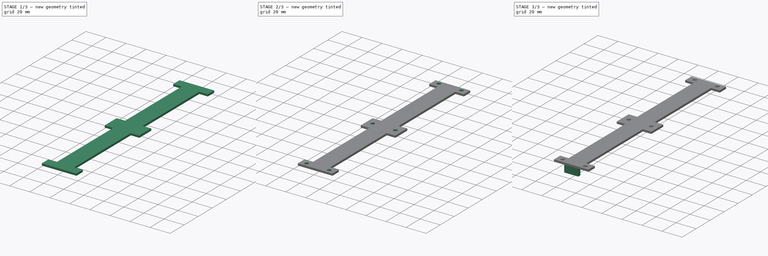
[diagram: build sequence overview — one tinted view per stage of 3, left to right]
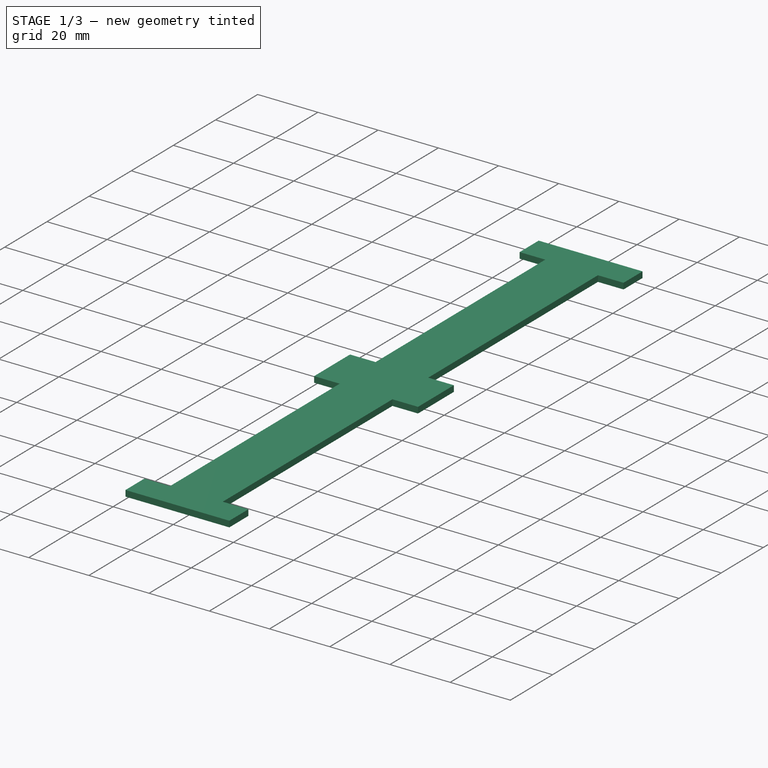
[diagram: stage 1 of 3 — iso view after this stage's code; geometry added in this stage tinted green]
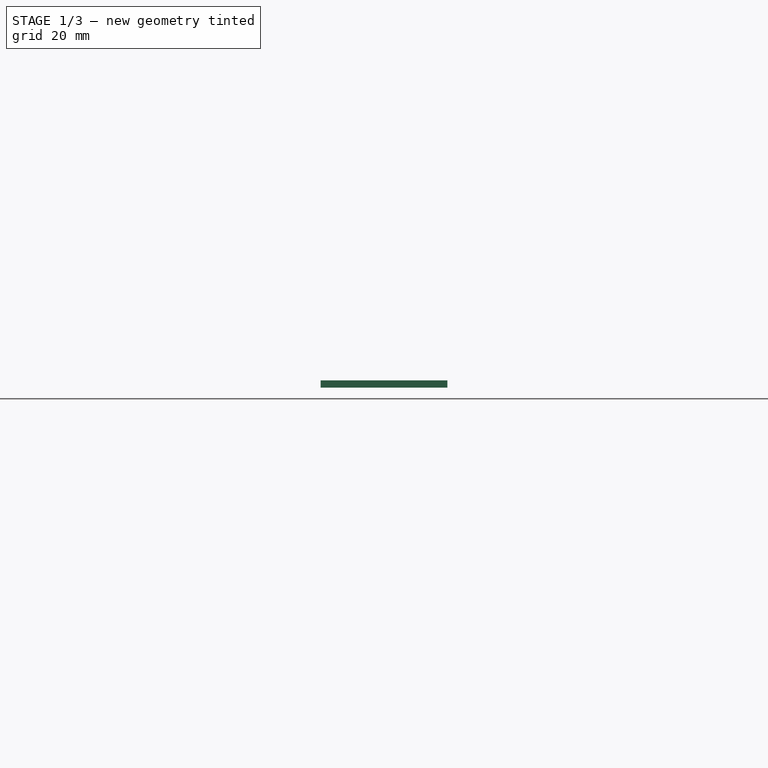
[diagram: stage 1 of 3 — front view after this stage's code; geometry added in this stage tinted green]
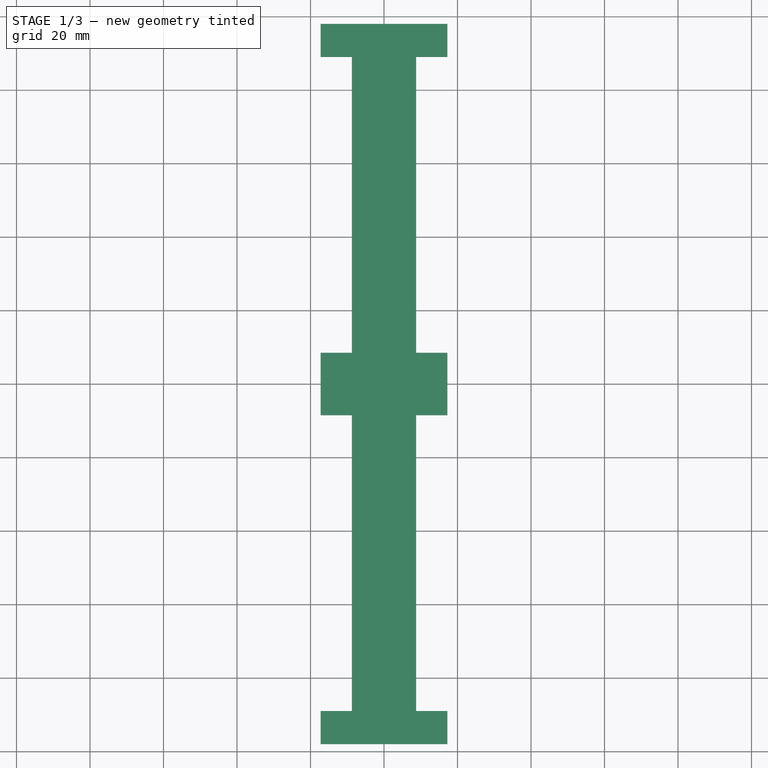
[diagram: stage 1 of 3 — top view after this stage's code; geometry added in this stage tinted green]
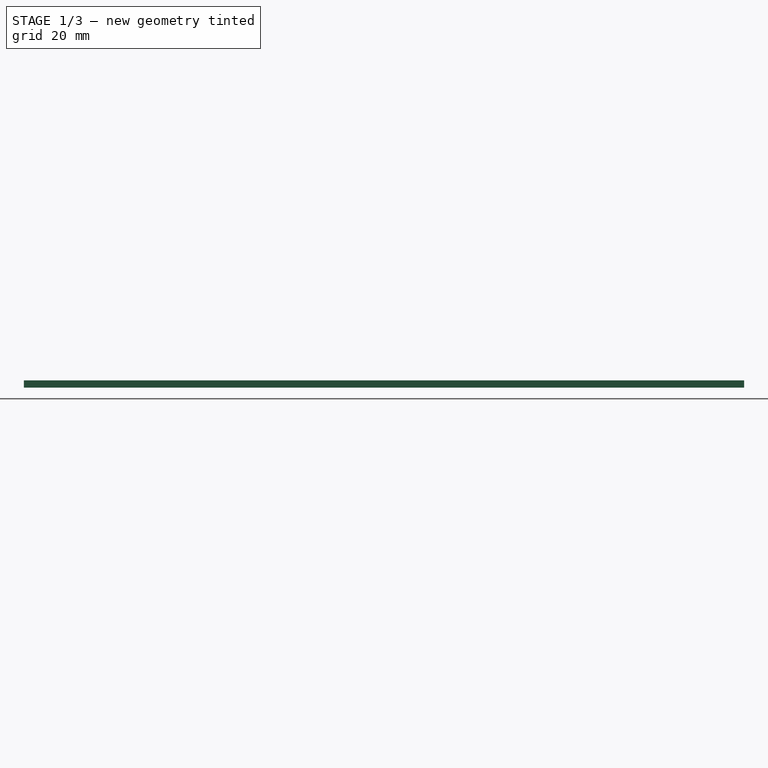
[diagram: stage 1 of 3 — right view after this stage's code; geometry added in this stage tinted green]
FCSTD DOCUMENT  (FreeCAD 0.19R19180 (Git))
Label: fan_holder_wire_cover
License: All rights reserved
LicenseURL: http://en.wikipedia.org/wiki/All_rights_reserved
objects: Sketcher::SketchObject×4, PartDesign::Pad×2, PartDesign::Pocket×2, PartDesign::Fillet×1, PartDesign::Body×1
note: 14 computed .brp shape members not serialized (recipe doc carries the construction recipe); baked Part::Feature solids carry a one-line shape summary decoded from their .brp

FEATURE [Sketcher::SketchObject] Sketch
  MapMode = 5
  Support = -> [XY_Plane]
  sketch-geometry (4):
    g0: LineSegment StartX=-17.25 StartY=98 StartZ=0 EndX=17.25 EndY=98 EndZ=0
    g1: LineSegment StartX=17.25 StartY=98 StartZ=0 EndX=17.25 EndY=-98 EndZ=0
    g2: LineSegment StartX=17.25 StartY=-98 StartZ=0 EndX=-17.25 EndY=-98 EndZ=0
    g3: LineSegment StartX=-17.25 StartY=-98 StartZ=0 EndX=-17.25 EndY=98 EndZ=0
  constraints (12):
    c: Coincident(g0,g1)
    c: Coincident(g1,g2)
    c: Coincident(g2,g3)
    c: Coincident(g3,g0)
    c: Horizontal(g0)
    c: Horizontal(g2)
    c: Vertical(g1)
    c: Vertical(g3)
    c: DistanceX(g2,g2) = 34.5
    c: DistanceY(g3,g3) = 196
    c: DistanceY(g-1,g0) = 98
    c: DistanceX(g2,g-1) = 17.25
FEATURE [PartDesign::Pad] Pad
  Length = 2
  Length2 = 100
  Profile = -> Sketch
  Type = 0
FEATURE [Sketcher::SketchObject] Sketch001
  ExternalGeometry = -> [Pad]
  MapMode = 5
  Placement = pos=(0,0,2) rot=(0,0,1;0rad)
  Support = -> [Pad]
  sketch-geometry (16):
    g0: LineSegment StartX=-17.25 StartY=89 StartZ=0 EndX=-8.75 EndY=89 EndZ=0
    g1: LineSegment StartX=-8.75 StartY=89 StartZ=0 EndX=-8.75 EndY=8.5 EndZ=0
    g2: LineSegment StartX=-8.75 StartY=8.5 StartZ=0 EndX=-17.25 EndY=8.5 EndZ=0
    g3: LineSegment StartX=-17.25 StartY=8.5 StartZ=0 EndX=-17.25 EndY=89 EndZ=0
    g4: LineSegment StartX=8.75 StartY=89 StartZ=0 EndX=17.25 EndY=89 EndZ=0
    g5: LineSegment StartX=17.25 StartY=89 StartZ=0 EndX=17.25 EndY=8.5 EndZ=0
    g6: LineSegment StartX=17.25 StartY=8.5 StartZ=0 EndX=8.75 EndY=8.5 EndZ=0
    g7: LineSegment StartX=8.75 StartY=8.5 StartZ=0 EndX=8.75 EndY=89 EndZ=0
    g8: LineSegment StartX=-17.25 StartY=-8.5 StartZ=0 EndX=-8.75 EndY=-8.5 EndZ=0
    g9: LineSegment StartX=-8.75 StartY=-8.5 StartZ=0 EndX=-8.75 EndY=-89 EndZ=0
    g10: LineSegment StartX=-8.75 StartY=-89 StartZ=0 EndX=-17.25 EndY=-89 EndZ=0
    g11: LineSegment StartX=-17.25 StartY=-89 StartZ=0 EndX=-17.25 EndY=-8.5 EndZ=0
    g12: LineSegment StartX=8.75 StartY=-8.5 StartZ=0 EndX=17.25 EndY=-8.5 EndZ=0
    g13: LineSegment StartX=17.25 StartY=-8.5 StartZ=0 EndX=17.25 EndY=-89 EndZ=0
    g14: LineSegment StartX=17.25 StartY=-89 StartZ=0 EndX=8.75 EndY=-89 EndZ=0
    g15: LineSegment StartX=8.75 StartY=-89 StartZ=0 EndX=8.75 EndY=-8.5 EndZ=0
  constraints (48):
    c: Coincident(g0,g1)
    c: Coincident(g1,g2)
    c: Coincident(g2,g3)
    c: Coincident(g3,g0)
    c: Horizontal(g0)
    c: Horizontal(g2)
    c: Vertical(g1)
    c: Vertical(g3)
    c: Coincident(g4,g5)
    c: Coincident(g5,g6)
    c: Coincident(g6,g7)
    c: Coincident(g7,g4)
    c: Horizontal(g4)
    c: Horizontal(g6)
    c: Vertical(g5)
    c: Vertical(g7)
    c: Coincident(g8,g9)
    c: Coincident(g9,g10)
    c: Coincident(g10,g11)
    c: Coincident(g11,g8)
    c: Horizontal(g8)
    c: Horizontal(g10)
    c: Vertical(g9)
    c: Vertical(g11)
    c: Coincident(g12,g13)
    c: Coincident(g13,g14)
    c: Coincident(g14,g15)
    c: Coincident(g15,g12)
    c: Horizontal(g12)
    c: Horizontal(g14)
    c: Vertical(g13)
    c: Vertical(g15)
    c: Vertical(g-4,g0)
    c: Vertical(g0,g8)
    c: Vertical(g4,g-3)
    c: Vertical(g-3,g12)
    c: Equal(g0,g4)
    c: Equal(g4,g8)
    c: Equal(g8,g12)
    c: DistanceX(g0,g0) = 8.5
    c: DistanceY(g0,g-4) = 9
    c: Horizontal(g0,g4)
    c: Horizontal(g8,g12)
    c: Horizontal(g1,g6)
    c: DistanceY(g8,g2) = 17
    c: DistanceY(g-1,g2) = 8.5
    c: DistanceY(g-5,g10) = 9
    c: Horizontal(g14,g9)
FEATURE [PartDesign::Pocket] Pocket
  BaseFeature = -> Pad
  Length = 5
  Length2 = 100
  Profile = -> Sketch001
  Type = 0
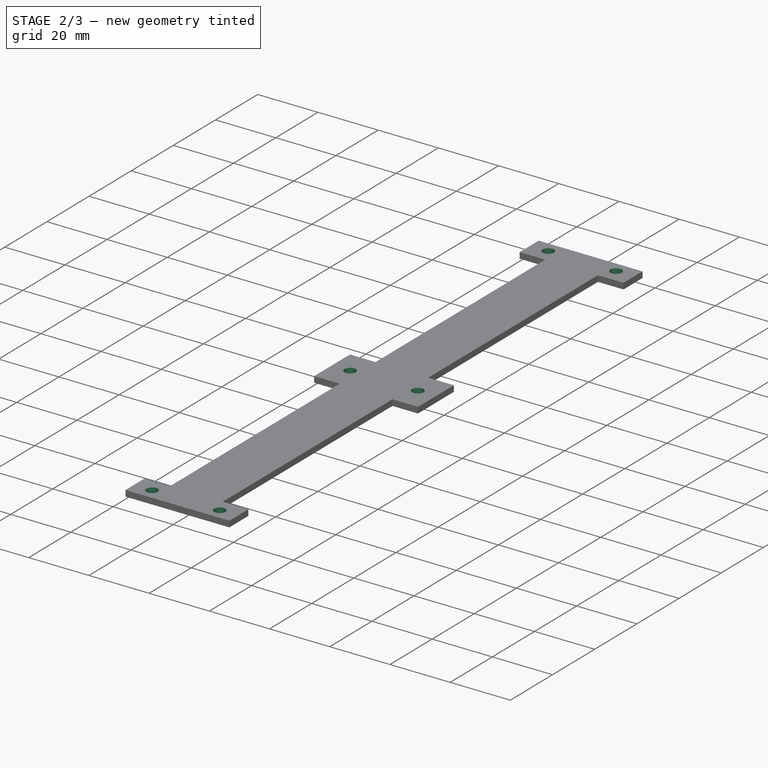
[diagram: stage 2 of 3 — iso view after this stage's code; geometry added in this stage tinted green]
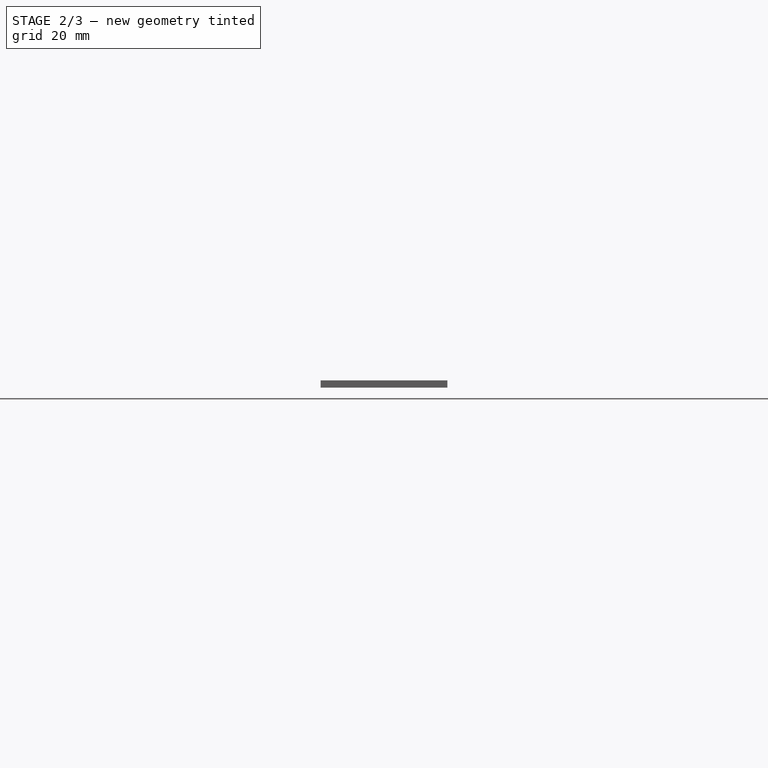
[diagram: stage 2 of 3 — front view after this stage's code; geometry added in this stage tinted green]
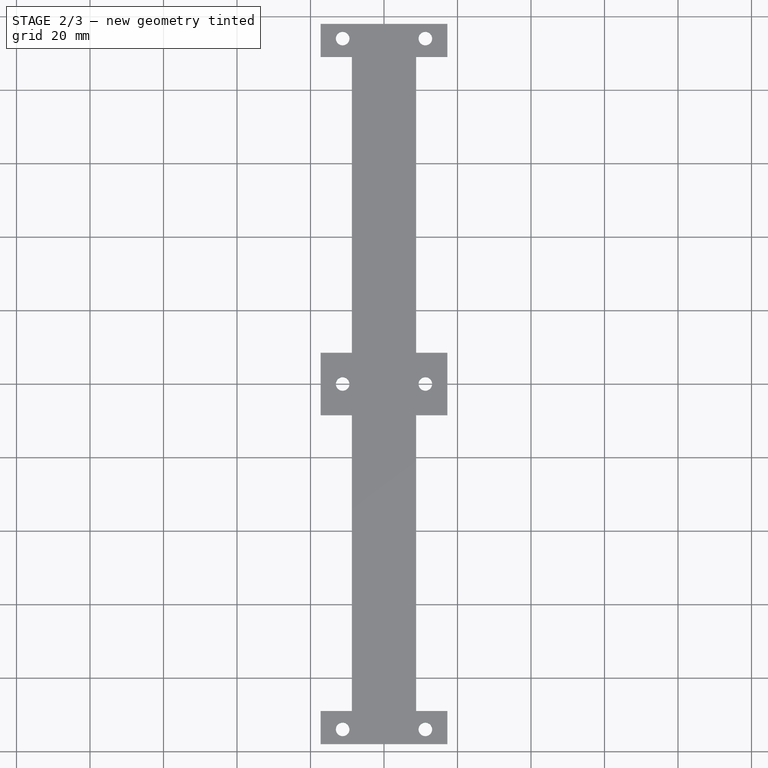
[diagram: stage 2 of 3 — top view after this stage's code; geometry added in this stage tinted green]
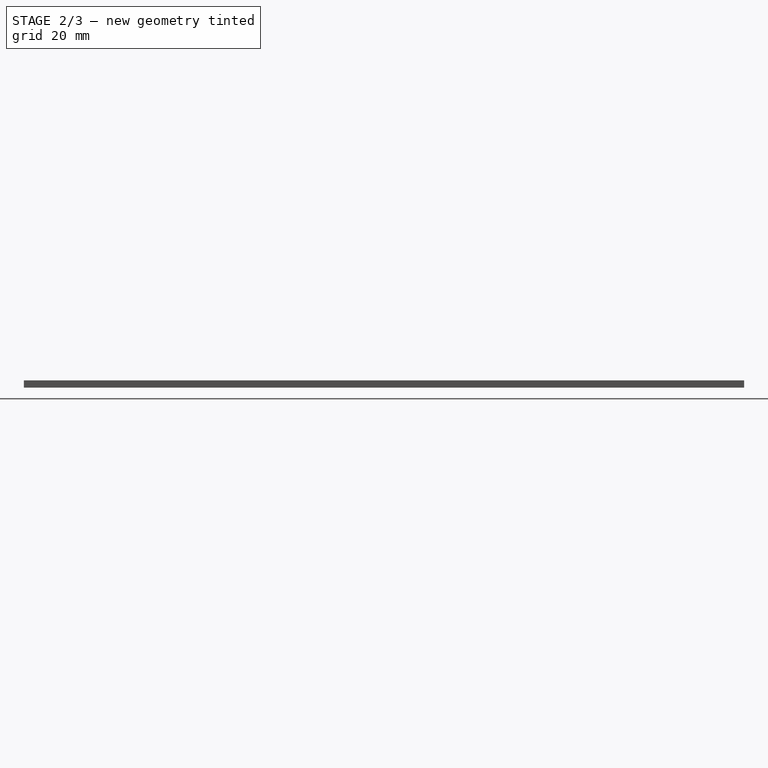
[diagram: stage 2 of 3 — right view after this stage's code; geometry added in this stage tinted green]
FEATURE [Sketcher::SketchObject] Sketch002
  ExternalGeometry = -> [Pocket]
  MapMode = 5
  Placement = pos=(0,0,2) rot=(0,0,1;0rad)
  Support = -> [Pocket]
  sketch-geometry (6):
    g0: Circle CenterX=-11.25 CenterY=94 CenterZ=0 NormalX=0 NormalY=0 NormalZ=1 AngleXU=0 Radius=1.85
    g1: Circle CenterX=11.25 CenterY=94 CenterZ=0 NormalX=0 NormalY=0 NormalZ=1 AngleXU=0 Radius=1.85
    g2: Circle CenterX=-11.25 CenterY=0 CenterZ=0 NormalX=0 NormalY=0 NormalZ=1 AngleXU=0 Radius=1.85
    g3: Circle CenterX=11.25 CenterY=0 CenterZ=0 NormalX=0 NormalY=0 NormalZ=1 AngleXU=0 Radius=1.85
    g4: Circle CenterX=-11.25 CenterY=-94 CenterZ=0 NormalX=0 NormalY=0 NormalZ=1 AngleXU=0 Radius=1.85
    g5: Circle CenterX=11.25 CenterY=-94 CenterZ=0 NormalX=0 NormalY=0 NormalZ=1 AngleXU=0 Radius=1.85
  constraints (19):
    c: PointOnObject(g2,g-1)
    c: PointOnObject(g3,g-1)
    c: Diameter(g5) = 3.7
    c: Equal(g5,g4)
    c: Equal(g5,g2)
    c: Equal(g5,g3)
    c: Equal(g5,g1)
    c: Equal(g5,g0)
    c: Vertical(g3,g1)
    c: Vertical(g1,g5)
    c: Vertical(g4,g0)
    c: Vertical(g0,g2)
    c: Horizontal(g5,g4)
    c: DistanceY(g-3,g5) = 4
    c: DistanceX(g4,g5) = 22.5
    c: DistanceX(g-1,g5) = 11.25
    c: DistanceY(g-5) = 98
    c: DistanceY(g1,g-4) = 4
    c: Horizontal(g0,g1)
FEATURE [PartDesign::Pocket] Pocket001
  BaseFeature = -> Pocket
  Length = 5
  Length2 = 100
  Profile = -> Sketch002
  Type = 0
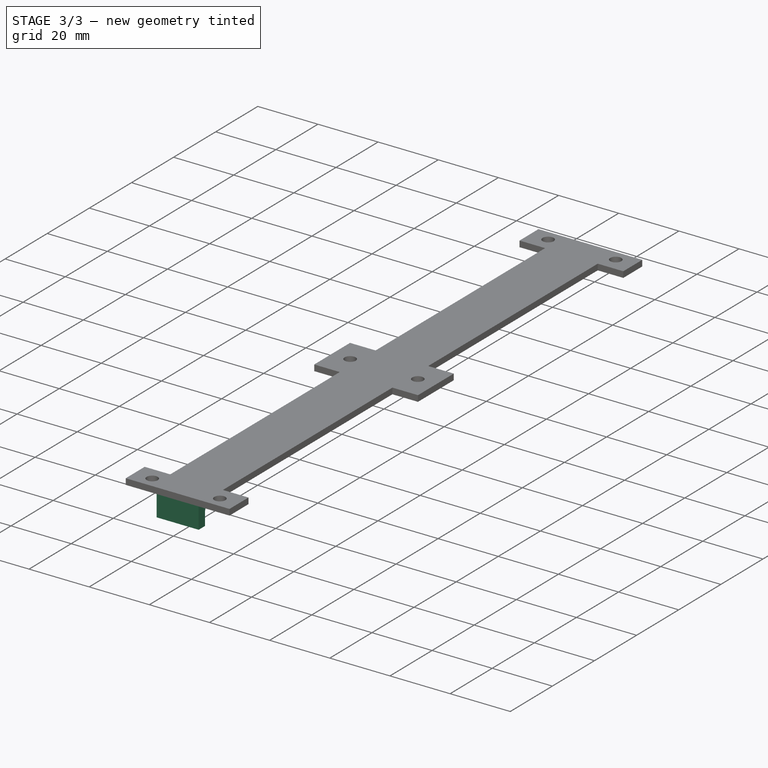
[diagram: stage 3 of 3 — iso view after this stage's code; geometry added in this stage tinted green]
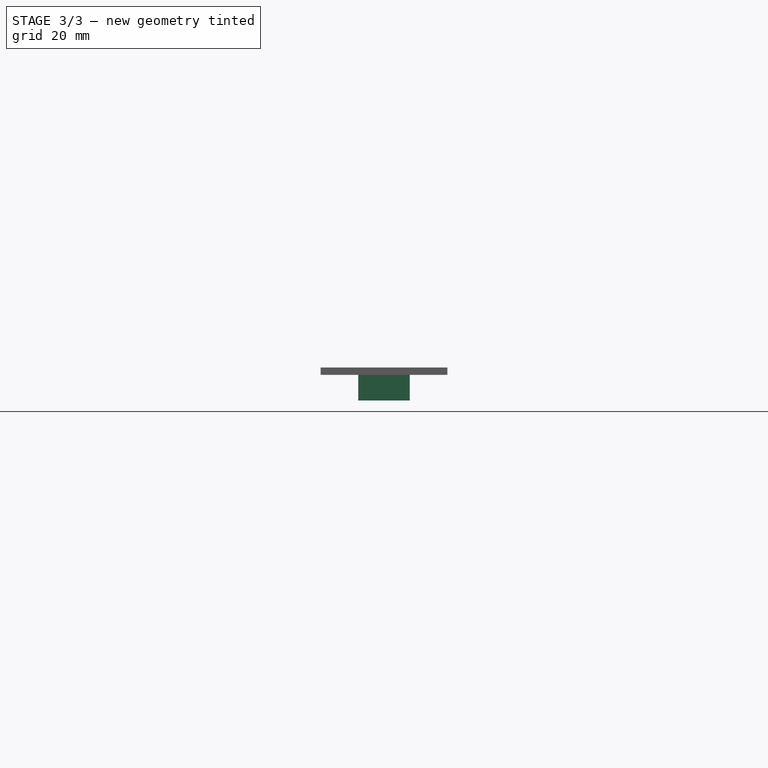
[diagram: stage 3 of 3 — front view after this stage's code; geometry added in this stage tinted green]
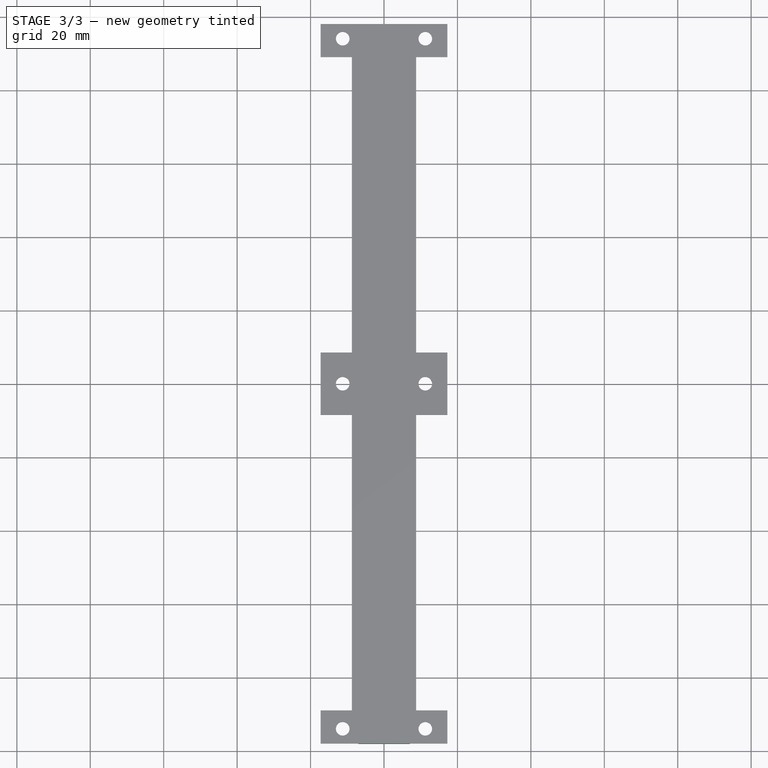
[diagram: stage 3 of 3 — top view after this stage's code; geometry added in this stage tinted green]
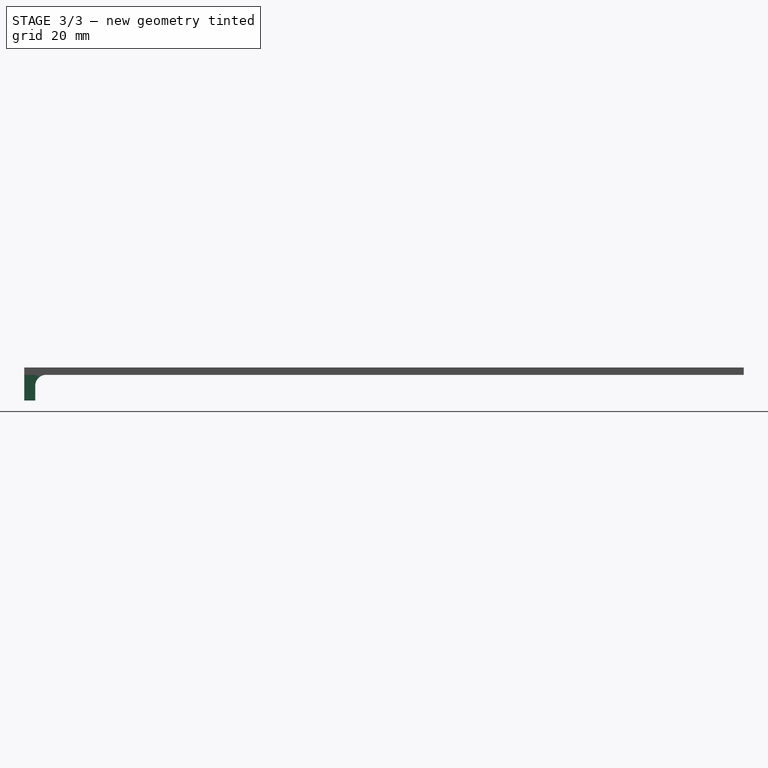
[diagram: stage 3 of 3 — right view after this stage's code; geometry added in this stage tinted green]
FEATURE [Sketcher::SketchObject] Sketch003
  ExternalGeometry = -> [Pocket001]
  MapMode = 5
  Placement = pos=(0,0,0) rot=(1,0,0;3.14159rad)
  Support = -> [Pocket001]
  sketch-geometry (4):
    g0: LineSegment StartX=-7 StartY=98 StartZ=0 EndX=7 EndY=98 EndZ=0
    g1: LineSegment StartX=7 StartY=98 StartZ=0 EndX=7 EndY=95 EndZ=0
    g2: LineSegment StartX=7 StartY=95 StartZ=0 EndX=-7 EndY=95 EndZ=0
    g3: LineSegment StartX=-7 StartY=95 StartZ=0 EndX=-7 EndY=98 EndZ=0
  constraints (12):
    c: Coincident(g0,g1)
    c: Coincident(g1,g2)
    c: Coincident(g2,g3)
    c: Coincident(g3,g0)
    c: Horizontal(g0)
    c: Horizontal(g2)
    c: Vertical(g1)
    c: Vertical(g3)
    c: Horizontal(g0,g-4)
    c: DistanceY(g3,g3) = 3
    c: DistanceX(g0,g0) = 14
    c: DistanceX(g0,g-1) = 7
FEATURE [PartDesign::Pad] Pad001
  BaseFeature = -> Pocket001
  Length = 7
  Length2 = 100
  Profile = -> Sketch003
  Type = 0
FEATURE [PartDesign::Fillet] Fillet
  Base = -> Pad001 [Edge21]
  BaseFeature = -> Pad001
  Radius = 3
FEATURE [PartDesign::Body] Body
  Group = -> [Sketch,Pad,Sketch001,Pocket,Sketch002,Pocket001,Sketch003,Pad001,Fillet]
  Origin = -> Origin
  Tip = -> Fillet
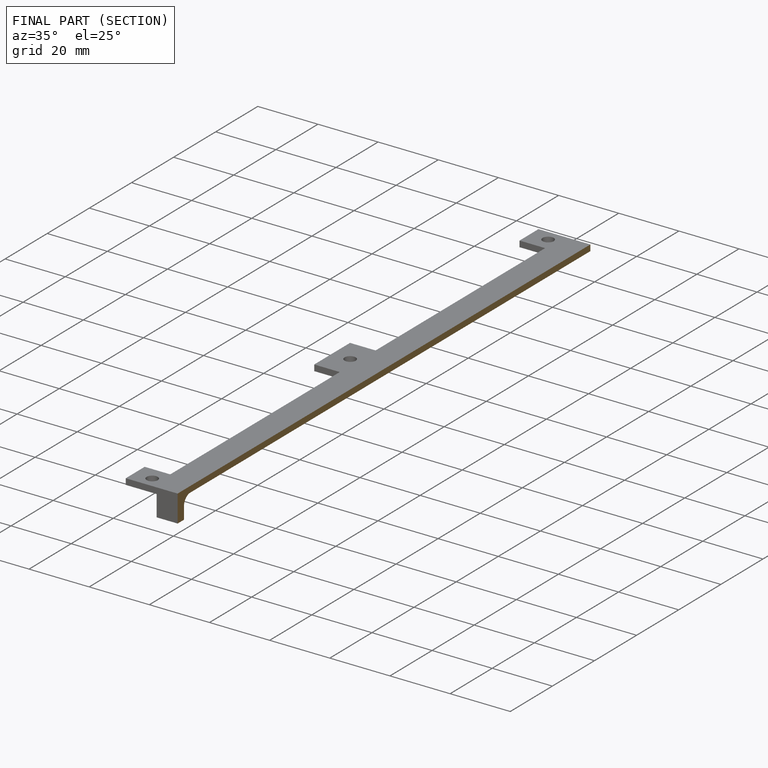
[diagram: finished part — half-section view (interior)]
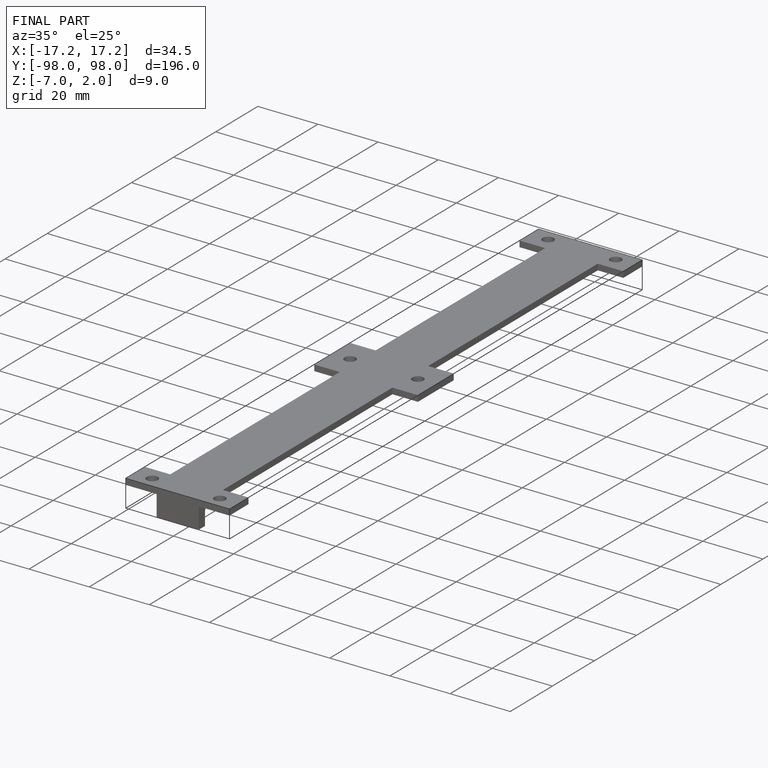
[diagram: finished part — iso view with bounding-box wireframe]
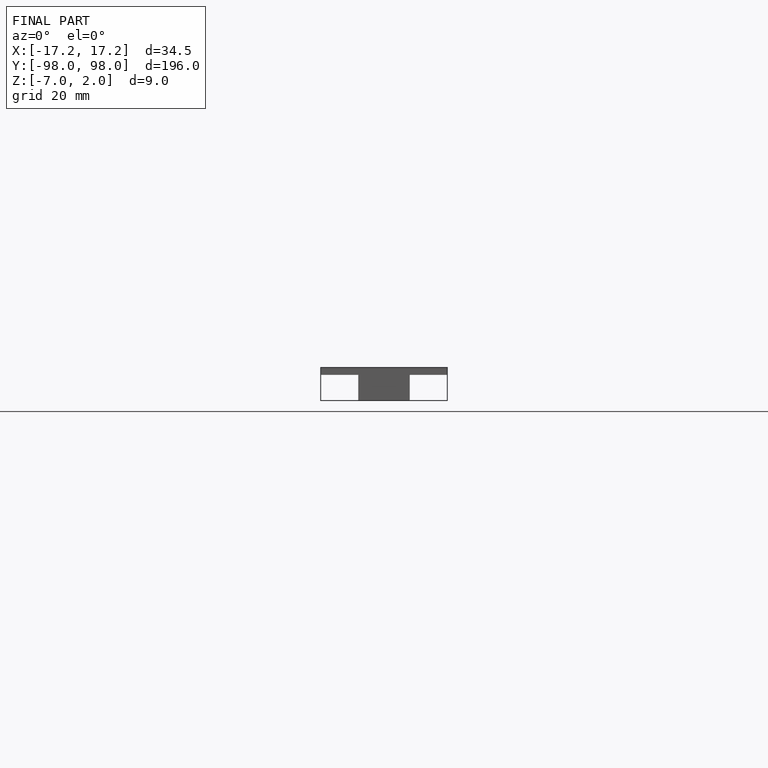
[diagram: finished part — front view with bounding-box wireframe]
